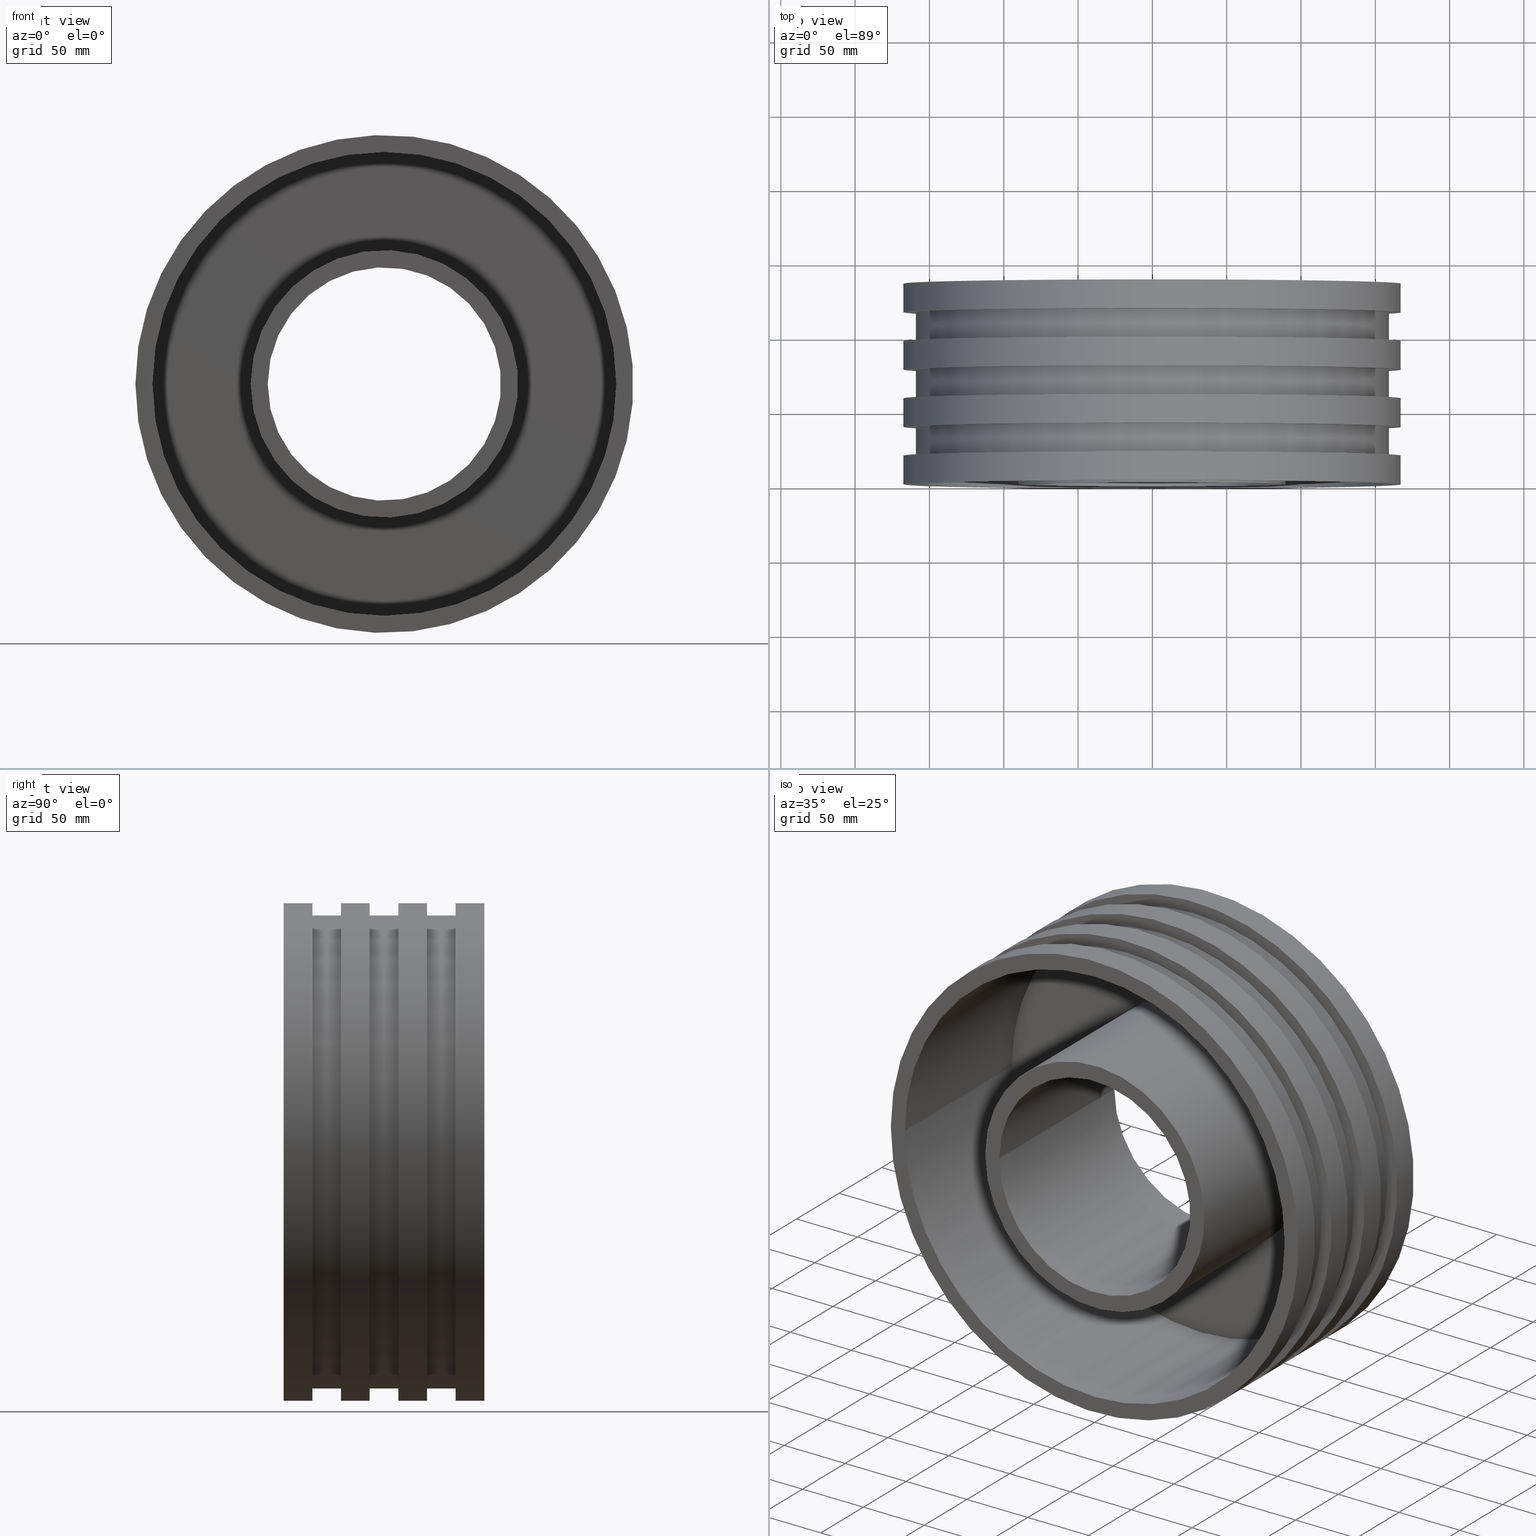
[diagram: canonical four-view strip — front | top / right | iso, engineering-drawing reading convention]
A machine part, canonical four-view strip (front | top / right | iso — engineering-drawing reading convention). The complete STEP part file that produces these views, byte-faithful:
ISO-10303-21;
HEADER;
/* Generated by software containing ST-Developer
 * from STEP Tools, Inc. (www.steptools.com) 
 */

FILE_DESCRIPTION(
/* description */ ('PLASSON MAN HOLE ADAPTOR 180'),
/* implementation_level */ '2;1');

FILE_NAME(
/* name */ 
'C:\\Dropbox\\KIMPROJECTS-Inventor\\99-16-3568-Processing\\ElectroFusi
on Fittings\\37020-477207\\37020180.ipt.stp',
/* time_stamp */ '2017-11-06T09:08:25+02:00',
/* author */ ('\X2\041A043804400438043B043B\X0\'),
/* organization */ (''),
/* preprocessor_version */ 'ST-DEVELOPER v15.6',
/* originating_system */ 'Autodesk Inventor 2015',
/* authorisation */ '');

FILE_SCHEMA (('AUTOMOTIVE_DESIGN { 1 0 10303 214 3 1 1 }'));
ENDSEC;

DATA;
#10=MECHANICAL_DESIGN_GEOMETRIC_PRESENTATION_REPRESENTATION('',(#13),#423);
#11=SHAPE_REPRESENTATION_RELATIONSHIP('SRR','None',#432,#12);
#12=ADVANCED_BREP_SHAPE_REPRESENTATION($,(#14),#422);
#13=STYLED_ITEM('',(#441),#14);
#14=MANIFOLD_SOLID_BREP('Solid1',#235);
#15=CYLINDRICAL_SURFACE('',#240,90.);
#16=CYLINDRICAL_SURFACE('',#244,156.);
#17=CYLINDRICAL_SURFACE('',#248,167.5);
#18=CYLINDRICAL_SURFACE('',#252,159.125);
#19=CYLINDRICAL_SURFACE('',#256,167.5);
#20=CYLINDRICAL_SURFACE('',#260,159.125);
#21=CYLINDRICAL_SURFACE('',#264,167.5);
#22=CYLINDRICAL_SURFACE('',#268,159.125);
#23=CYLINDRICAL_SURFACE('',#272,167.5);
#24=CYLINDRICAL_SURFACE('',#276,78.5);
#25=FACE_BOUND('',#66,.T.);
#26=FACE_BOUND('',#68,.T.);
#27=FACE_BOUND('',#70,.T.);
#28=FACE_BOUND('',#72,.T.);
#29=FACE_BOUND('',#74,.T.);
#30=FACE_BOUND('',#76,.T.);
#31=FACE_BOUND('',#78,.T.);
#32=FACE_BOUND('',#80,.T.);
#33=FACE_BOUND('',#82,.T.);
#34=FACE_BOUND('',#84,.T.);
#35=FACE_BOUND('',#86,.T.);
#36=FACE_BOUND('',#88,.T.);
#37=FACE_BOUND('',#90,.T.);
#38=FACE_BOUND('',#92,.T.);
#39=FACE_BOUND('',#94,.T.);
#40=FACE_BOUND('',#96,.T.);
#41=FACE_BOUND('',#98,.T.);
#42=FACE_BOUND('',#100,.T.);
#43=FACE_BOUND('',#102,.T.);
#44=FACE_BOUND('',#104,.T.);
#45=FACE_OUTER_BOUND('',#65,.T.);
#46=FACE_OUTER_BOUND('',#67,.T.);
#47=FACE_OUTER_BOUND('',#69,.T.);
#48=FACE_OUTER_BOUND('',#71,.T.);
#49=FACE_OUTER_BOUND('',#73,.T.);
#50=FACE_OUTER_BOUND('',#75,.T.);
#51=FACE_OUTER_BOUND('',#77,.T.);
#52=FACE_OUTER_BOUND('',#79,.T.);
#53=FACE_OUTER_BOUND('',#81,.T.);
#54=FACE_OUTER_BOUND('',#83,.T.);
#55=FACE_OUTER_BOUND('',#85,.T.);
#56=FACE_OUTER_BOUND('',#87,.T.);
#57=FACE_OUTER_BOUND('',#89,.T.);
#58=FACE_OUTER_BOUND('',#91,.T.);
#59=FACE_OUTER_BOUND('',#93,.T.);
#60=FACE_OUTER_BOUND('',#95,.T.);
#61=FACE_OUTER_BOUND('',#97,.T.);
#62=FACE_OUTER_BOUND('',#99,.T.);
#63=FACE_OUTER_BOUND('',#101,.T.);
#64=FACE_OUTER_BOUND('',#103,.T.);
#65=EDGE_LOOP('',(#165));
#66=EDGE_LOOP('',(#166));
#67=EDGE_LOOP('',(#167));
#68=EDGE_LOOP('',(#168));
#69=EDGE_LOOP('',(#169));
#70=EDGE_LOOP('',(#170));
#71=EDGE_LOOP('',(#171));
#72=EDGE_LOOP('',(#172));
#73=EDGE_LOOP('',(#173));
#74=EDGE_LOOP('',(#174));
#75=EDGE_LOOP('',(#175));
#76=EDGE_LOOP('',(#176));
#77=EDGE_LOOP('',(#177));
#78=EDGE_LOOP('',(#178));
#79=EDGE_LOOP('',(#179));
#80=EDGE_LOOP('',(#180));
#81=EDGE_LOOP('',(#181));
#82=EDGE_LOOP('',(#182));
#83=EDGE_LOOP('',(#183));
#84=EDGE_LOOP('',(#184));
#85=EDGE_LOOP('',(#185));
#86=EDGE_LOOP('',(#186));
#87=EDGE_LOOP('',(#187));
#88=EDGE_LOOP('',(#188));
#89=EDGE_LOOP('',(#189));
#90=EDGE_LOOP('',(#190));
#91=EDGE_LOOP('',(#191));
#92=EDGE_LOOP('',(#192));
#93=EDGE_LOOP('',(#193));
#94=EDGE_LOOP('',(#194));
#95=EDGE_LOOP('',(#195));
#96=EDGE_LOOP('',(#196));
#97=EDGE_LOOP('',(#197));
#98=EDGE_LOOP('',(#198));
#99=EDGE_LOOP('',(#199));
#100=EDGE_LOOP('',(#200));
#101=EDGE_LOOP('',(#201));
#102=EDGE_LOOP('',(#202));
#103=EDGE_LOOP('',(#203));
#104=EDGE_LOOP('',(#204));
#105=CIRCLE('',#238,90.);
#106=CIRCLE('',#239,78.5);
#107=CIRCLE('',#241,90.);
#108=CIRCLE('',#243,156.);
#109=CIRCLE('',#245,156.);
#110=CIRCLE('',#247,167.5);
#111=CIRCLE('',#249,167.5);
#112=CIRCLE('',#251,159.125);
#113=CIRCLE('',#253,159.125);
#114=CIRCLE('',#255,167.5);
#115=CIRCLE('',#257,167.5);
#116=CIRCLE('',#259,159.125);
#117=CIRCLE('',#261,159.125);
#118=CIRCLE('',#263,167.5);
#119=CIRCLE('',#265,167.5);
#120=CIRCLE('',#267,159.125);
#121=CIRCLE('',#269,159.125);
#122=CIRCLE('',#271,167.5);
#123=CIRCLE('',#273,167.5);
#124=CIRCLE('',#275,78.5);
#125=VERTEX_POINT('',#361);
#126=VERTEX_POINT('',#363);
#127=VERTEX_POINT('',#366);
#128=VERTEX_POINT('',#369);
#129=VERTEX_POINT('',#372);
#130=VERTEX_POINT('',#375);
#131=VERTEX_POINT('',#378);
#132=VERTEX_POINT('',#381);
#133=VERTEX_POINT('',#384);
#134=VERTEX_POINT('',#387);
#135=VERTEX_POINT('',#390);
#136=VERTEX_POINT('',#393);
#137=VERTEX_POINT('',#396);
#138=VERTEX_POINT('',#399);
#139=VERTEX_POINT('',#402);
#140=VERTEX_POINT('',#405);
#141=VERTEX_POINT('',#408);
#142=VERTEX_POINT('',#411);
#143=VERTEX_POINT('',#414);
#144=VERTEX_POINT('',#417);
#145=EDGE_CURVE('',#125,#125,#105,.T.);
#146=EDGE_CURVE('',#126,#126,#106,.T.);
#147=EDGE_CURVE('',#127,#127,#107,.T.);
#148=EDGE_CURVE('',#128,#128,#108,.T.);
#149=EDGE_CURVE('',#129,#129,#109,.T.);
#150=EDGE_CURVE('',#130,#130,#110,.T.);
#151=EDGE_CURVE('',#131,#131,#111,.T.);
#152=EDGE_CURVE('',#132,#132,#112,.T.);
#153=EDGE_CURVE('',#133,#133,#113,.T.);
#154=EDGE_CURVE('',#134,#134,#114,.T.);
#155=EDGE_CURVE('',#135,#135,#115,.T.);
#156=EDGE_CURVE('',#136,#136,#116,.T.);
#157=EDGE_CURVE('',#137,#137,#117,.T.);
#158=EDGE_CURVE('',#138,#138,#118,.T.);
#159=EDGE_CURVE('',#139,#139,#119,.T.);
#160=EDGE_CURVE('',#140,#140,#120,.T.);
#161=EDGE_CURVE('',#141,#141,#121,.T.);
#162=EDGE_CURVE('',#142,#142,#122,.T.);
#163=EDGE_CURVE('',#143,#143,#123,.T.);
#164=EDGE_CURVE('',#144,#144,#124,.T.);
#165=ORIENTED_EDGE('',*,*,#145,.F.);
#166=ORIENTED_EDGE('',*,*,#146,.T.);
#167=ORIENTED_EDGE('',*,*,#145,.T.);
#168=ORIENTED_EDGE('',*,*,#147,.F.);
#169=ORIENTED_EDGE('',*,*,#148,.F.);
#170=ORIENTED_EDGE('',*,*,#147,.T.);
#171=ORIENTED_EDGE('',*,*,#148,.T.);
#172=ORIENTED_EDGE('',*,*,#149,.F.);
#173=ORIENTED_EDGE('',*,*,#150,.F.);
#174=ORIENTED_EDGE('',*,*,#149,.T.);
#175=ORIENTED_EDGE('',*,*,#150,.T.);
#176=ORIENTED_EDGE('',*,*,#151,.F.);
#177=ORIENTED_EDGE('',*,*,#151,.T.);
#178=ORIENTED_EDGE('',*,*,#152,.F.);
#179=ORIENTED_EDGE('',*,*,#152,.T.);
#180=ORIENTED_EDGE('',*,*,#153,.F.);
#181=ORIENTED_EDGE('',*,*,#154,.F.);
#182=ORIENTED_EDGE('',*,*,#153,.T.);
#183=ORIENTED_EDGE('',*,*,#154,.T.);
#184=ORIENTED_EDGE('',*,*,#155,.F.);
#185=ORIENTED_EDGE('',*,*,#155,.T.);
#186=ORIENTED_EDGE('',*,*,#156,.F.);
#187=ORIENTED_EDGE('',*,*,#156,.T.);
#188=ORIENTED_EDGE('',*,*,#157,.F.);
#189=ORIENTED_EDGE('',*,*,#158,.F.);
#190=ORIENTED_EDGE('',*,*,#157,.T.);
#191=ORIENTED_EDGE('',*,*,#158,.T.);
#192=ORIENTED_EDGE('',*,*,#159,.F.);
#193=ORIENTED_EDGE('',*,*,#159,.T.);
#194=ORIENTED_EDGE('',*,*,#160,.F.);
#195=ORIENTED_EDGE('',*,*,#160,.T.);
#196=ORIENTED_EDGE('',*,*,#161,.F.);
#197=ORIENTED_EDGE('',*,*,#162,.F.);
#198=ORIENTED_EDGE('',*,*,#161,.T.);
#199=ORIENTED_EDGE('',*,*,#162,.T.);
#200=ORIENTED_EDGE('',*,*,#163,.F.);
#201=ORIENTED_EDGE('',*,*,#163,.T.);
#202=ORIENTED_EDGE('',*,*,#164,.F.);
#203=ORIENTED_EDGE('',*,*,#164,.T.);
#204=ORIENTED_EDGE('',*,*,#146,.F.);
#205=PLANE('',#237);
#206=PLANE('',#242);
#207=PLANE('',#246);
#208=PLANE('',#250);
#209=PLANE('',#254);
#210=PLANE('',#258);
#211=PLANE('',#262);
#212=PLANE('',#266);
#213=PLANE('',#270);
#214=PLANE('',#274);
#215=ADVANCED_FACE('',(#45,#25),#205,.T.);
#216=ADVANCED_FACE('',(#46,#26),#15,.T.);
#217=ADVANCED_FACE('',(#47,#27),#206,.T.);
#218=ADVANCED_FACE('',(#48,#28),#16,.F.);
#219=ADVANCED_FACE('',(#49,#29),#207,.T.);
#220=ADVANCED_FACE('',(#50,#30),#17,.T.);
#221=ADVANCED_FACE('',(#51,#31),#208,.T.);
#222=ADVANCED_FACE('',(#52,#32),#18,.T.);
#223=ADVANCED_FACE('',(#53,#33),#209,.T.);
#224=ADVANCED_FACE('',(#54,#34),#19,.T.);
#225=ADVANCED_FACE('',(#55,#35),#210,.T.);
#226=ADVANCED_FACE('',(#56,#36),#20,.T.);
#227=ADVANCED_FACE('',(#57,#37),#211,.T.);
#228=ADVANCED_FACE('',(#58,#38),#21,.T.);
#229=ADVANCED_FACE('',(#59,#39),#212,.T.);
#230=ADVANCED_FACE('',(#60,#40),#22,.T.);
#231=ADVANCED_FACE('',(#61,#41),#213,.T.);
#232=ADVANCED_FACE('',(#62,#42),#23,.T.);
#233=ADVANCED_FACE('',(#63,#43),#214,.T.);
#234=ADVANCED_FACE('',(#64,#44),#24,.F.);
#235=CLOSED_SHELL('',(#215,#216,#217,#218,#219,#220,#221,#222,#223,#224,
#225,#226,#227,#228,#229,#230,#231,#232,#233,#234));
#236=AXIS2_PLACEMENT_3D('placement',#359,#277,#278);
#237=AXIS2_PLACEMENT_3D('',#360,#279,#280);
#238=AXIS2_PLACEMENT_3D('',#362,#281,#282);
#239=AXIS2_PLACEMENT_3D('',#364,#283,#284);
#240=AXIS2_PLACEMENT_3D('',#365,#285,#286);
#241=AXIS2_PLACEMENT_3D('',#367,#287,#288);
#242=AXIS2_PLACEMENT_3D('',#368,#289,#290);
#243=AXIS2_PLACEMENT_3D('',#370,#291,#292);
#244=AXIS2_PLACEMENT_3D('',#371,#293,#294);
#245=AXIS2_PLACEMENT_3D('',#373,#295,#296);
#246=AXIS2_PLACEMENT_3D('',#374,#297,#298);
#247=AXIS2_PLACEMENT_3D('',#376,#299,#300);
#248=AXIS2_PLACEMENT_3D('',#377,#301,#302);
#249=AXIS2_PLACEMENT_3D('',#379,#303,#304);
#250=AXIS2_PLACEMENT_3D('',#380,#305,#306);
#251=AXIS2_PLACEMENT_3D('',#382,#307,#308);
#252=AXIS2_PLACEMENT_3D('',#383,#309,#310);
#253=AXIS2_PLACEMENT_3D('',#385,#311,#312);
#254=AXIS2_PLACEMENT_3D('',#386,#313,#314);
#255=AXIS2_PLACEMENT_3D('',#388,#315,#316);
#256=AXIS2_PLACEMENT_3D('',#389,#317,#318);
#257=AXIS2_PLACEMENT_3D('',#391,#319,#320);
#258=AXIS2_PLACEMENT_3D('',#392,#321,#322);
#259=AXIS2_PLACEMENT_3D('',#394,#323,#324);
#260=AXIS2_PLACEMENT_3D('',#395,#325,#326);
#261=AXIS2_PLACEMENT_3D('',#397,#327,#328);
#262=AXIS2_PLACEMENT_3D('',#398,#329,#330);
#263=AXIS2_PLACEMENT_3D('',#400,#331,#332);
#264=AXIS2_PLACEMENT_3D('',#401,#333,#334);
#265=AXIS2_PLACEMENT_3D('',#403,#335,#336);
#266=AXIS2_PLACEMENT_3D('',#404,#337,#338);
#267=AXIS2_PLACEMENT_3D('',#406,#339,#340);
#268=AXIS2_PLACEMENT_3D('',#407,#341,#342);
#269=AXIS2_PLACEMENT_3D('',#409,#343,#344);
#270=AXIS2_PLACEMENT_3D('',#410,#345,#346);
#271=AXIS2_PLACEMENT_3D('',#412,#347,#348);
#272=AXIS2_PLACEMENT_3D('',#413,#349,#350);
#273=AXIS2_PLACEMENT_3D('',#415,#351,#352);
#274=AXIS2_PLACEMENT_3D('',#416,#353,#354);
#275=AXIS2_PLACEMENT_3D('',#418,#355,#356);
#276=AXIS2_PLACEMENT_3D('',#419,#357,#358);
#277=DIRECTION('axis',(0.,0.,1.));
#278=DIRECTION('refdir',(1.,0.,0.));
#279=DIRECTION('center_axis',(0.,-1.,0.));
#280=DIRECTION('ref_axis',(0.,0.,-1.));
#281=DIRECTION('center_axis',(0.,1.,0.));
#282=DIRECTION('ref_axis',(1.,0.,0.));
#283=DIRECTION('center_axis',(0.,1.,0.));
#284=DIRECTION('ref_axis',(1.,0.,0.));
#285=DIRECTION('center_axis',(0.,1.,0.));
#286=DIRECTION('ref_axis',(-1.,0.,0.));
#287=DIRECTION('center_axis',(0.,1.,0.));
#288=DIRECTION('ref_axis',(1.,0.,0.));
#289=DIRECTION('center_axis',(0.,-1.,0.));
#290=DIRECTION('ref_axis',(0.,0.,-1.));
#291=DIRECTION('center_axis',(0.,1.,0.));
#292=DIRECTION('ref_axis',(1.,0.,0.));
#293=DIRECTION('center_axis',(0.,1.,0.));
#294=DIRECTION('ref_axis',(-1.,0.,0.));
#295=DIRECTION('center_axis',(0.,1.,0.));
#296=DIRECTION('ref_axis',(1.,0.,0.));
#297=DIRECTION('center_axis',(0.,-1.,0.));
#298=DIRECTION('ref_axis',(0.,0.,-1.));
#299=DIRECTION('center_axis',(0.,1.,0.));
#300=DIRECTION('ref_axis',(1.,0.,0.));
#301=DIRECTION('center_axis',(0.,1.,0.));
#302=DIRECTION('ref_axis',(-1.,0.,0.));
#303=DIRECTION('center_axis',(0.,1.,0.));
#304=DIRECTION('ref_axis',(1.,0.,0.));
#305=DIRECTION('center_axis',(0.,1.,0.));
#306=DIRECTION('ref_axis',(0.,0.,1.));
#307=DIRECTION('center_axis',(0.,1.,0.));
#308=DIRECTION('ref_axis',(1.,0.,0.));
#309=DIRECTION('center_axis',(0.,1.,0.));
#310=DIRECTION('ref_axis',(-1.,0.,0.));
#311=DIRECTION('center_axis',(0.,1.,0.));
#312=DIRECTION('ref_axis',(1.,0.,0.));
#313=DIRECTION('center_axis',(0.,-1.,0.));
#314=DIRECTION('ref_axis',(0.,0.,-1.));
#315=DIRECTION('center_axis',(0.,1.,0.));
#316=DIRECTION('ref_axis',(1.,0.,0.));
#317=DIRECTION('center_axis',(0.,1.,0.));
#318=DIRECTION('ref_axis',(-1.,0.,0.));
#319=DIRECTION('center_axis',(0.,1.,0.));
#320=DIRECTION('ref_axis',(1.,0.,0.));
#321=DIRECTION('center_axis',(0.,1.,0.));
#322=DIRECTION('ref_axis',(0.,0.,1.));
#323=DIRECTION('center_axis',(0.,1.,0.));
#324=DIRECTION('ref_axis',(1.,0.,0.));
#325=DIRECTION('center_axis',(0.,1.,0.));
#326=DIRECTION('ref_axis',(-1.,0.,0.));
#327=DIRECTION('center_axis',(0.,1.,0.));
#328=DIRECTION('ref_axis',(1.,0.,0.));
#329=DIRECTION('center_axis',(0.,-1.,0.));
#330=DIRECTION('ref_axis',(0.,0.,-1.));
#331=DIRECTION('center_axis',(0.,1.,0.));
#332=DIRECTION('ref_axis',(1.,0.,0.));
#333=DIRECTION('center_axis',(0.,1.,0.));
#334=DIRECTION('ref_axis',(-1.,0.,0.));
#335=DIRECTION('center_axis',(0.,1.,0.));
#336=DIRECTION('ref_axis',(1.,0.,0.));
#337=DIRECTION('center_axis',(0.,1.,0.));
#338=DIRECTION('ref_axis',(0.,0.,1.));
#339=DIRECTION('center_axis',(0.,1.,0.));
#340=DIRECTION('ref_axis',(1.,0.,0.));
#341=DIRECTION('center_axis',(0.,1.,0.));
#342=DIRECTION('ref_axis',(-1.,0.,0.));
#343=DIRECTION('center_axis',(0.,1.,0.));
#344=DIRECTION('ref_axis',(1.,0.,0.));
#345=DIRECTION('center_axis',(0.,-1.,0.));
#346=DIRECTION('ref_axis',(0.,0.,-1.));
#347=DIRECTION('center_axis',(0.,1.,0.));
#348=DIRECTION('ref_axis',(1.,0.,0.));
#349=DIRECTION('center_axis',(0.,1.,0.));
#350=DIRECTION('ref_axis',(-1.,0.,0.));
#351=DIRECTION('center_axis',(0.,1.,0.));
#352=DIRECTION('ref_axis',(1.,0.,0.));
#353=DIRECTION('center_axis',(0.,1.,0.));
#354=DIRECTION('ref_axis',(0.,0.,1.));
#355=DIRECTION('center_axis',(0.,1.,0.));
#356=DIRECTION('ref_axis',(1.,0.,0.));
#357=DIRECTION('center_axis',(0.,1.,0.));
#358=DIRECTION('ref_axis',(-1.,0.,0.));
#359=CARTESIAN_POINT('',(0.,0.,0.));
#360=CARTESIAN_POINT('Origin',(-90.,0.,0.));
#361=CARTESIAN_POINT('',(-90.,0.,0.));
#362=CARTESIAN_POINT('Origin',(0.,0.,0.));
#363=CARTESIAN_POINT('',(-78.5,0.,0.));
#364=CARTESIAN_POINT('Origin',(0.,0.,0.));
#365=CARTESIAN_POINT('Origin',(0.,62.6785714285714,0.));
#366=CARTESIAN_POINT('',(-90.,125.357142857143,0.));
#367=CARTESIAN_POINT('Origin',(0.,125.357142857143,0.));
#368=CARTESIAN_POINT('Origin',(-156.,125.357142857143,0.));
#369=CARTESIAN_POINT('',(-156.,125.357142857143,0.));
#370=CARTESIAN_POINT('Origin',(0.,125.357142857143,0.));
#371=CARTESIAN_POINT('Origin',(0.,62.6785714285714,0.));
#372=CARTESIAN_POINT('',(-156.,-5.91645678915755E-31,0.));
#373=CARTESIAN_POINT('Origin',(0.,0.,0.));
#374=CARTESIAN_POINT('Origin',(-167.5,0.,0.));
#375=CARTESIAN_POINT('',(-167.5,0.,0.));
#376=CARTESIAN_POINT('Origin',(0.,0.,0.));
#377=CARTESIAN_POINT('Origin',(0.,9.64285714285714,0.));
#378=CARTESIAN_POINT('',(-167.5,19.2857142857143,0.));
#379=CARTESIAN_POINT('Origin',(0.,19.2857142857143,0.));
#380=CARTESIAN_POINT('Origin',(-159.125,19.2857142857143,0.));
#381=CARTESIAN_POINT('',(-159.125,19.2857142857143,0.));
#382=CARTESIAN_POINT('Origin',(0.,19.2857142857143,0.));
#383=CARTESIAN_POINT('Origin',(0.,28.9285714285714,0.));
#384=CARTESIAN_POINT('',(-159.125,38.5714285714286,0.));
#385=CARTESIAN_POINT('Origin',(0.,38.5714285714286,0.));
#386=CARTESIAN_POINT('Origin',(-167.5,38.5714285714286,0.));
#387=CARTESIAN_POINT('',(-167.5,38.5714285714286,0.));
#388=CARTESIAN_POINT('Origin',(0.,38.5714285714286,0.));
#389=CARTESIAN_POINT('Origin',(0.,48.2142857142857,0.));
#390=CARTESIAN_POINT('',(-167.5,57.8571428571429,0.));
#391=CARTESIAN_POINT('Origin',(0.,57.8571428571429,0.));
#392=CARTESIAN_POINT('Origin',(-159.125,57.8571428571429,0.));
#393=CARTESIAN_POINT('',(-159.125,57.8571428571429,0.));
#394=CARTESIAN_POINT('Origin',(0.,57.8571428571429,0.));
#395=CARTESIAN_POINT('Origin',(0.,67.5,0.));
#396=CARTESIAN_POINT('',(-159.125,77.1428571428572,0.));
#397=CARTESIAN_POINT('Origin',(0.,77.1428571428572,0.));
#398=CARTESIAN_POINT('Origin',(-167.5,77.1428571428572,0.));
#399=CARTESIAN_POINT('',(-167.5,77.1428571428572,0.));
#400=CARTESIAN_POINT('Origin',(0.,77.1428571428572,0.));
#401=CARTESIAN_POINT('Origin',(0.,86.7857142857143,0.));
#402=CARTESIAN_POINT('',(-167.5,96.4285714285714,0.));
#403=CARTESIAN_POINT('Origin',(0.,96.4285714285714,0.));
#404=CARTESIAN_POINT('Origin',(-159.125,96.4285714285714,0.));
#405=CARTESIAN_POINT('',(-159.125,96.4285714285714,0.));
#406=CARTESIAN_POINT('Origin',(0.,96.4285714285714,0.));
#407=CARTESIAN_POINT('Origin',(0.,106.071428571429,0.));
#408=CARTESIAN_POINT('',(-159.125,115.714285714286,0.));
#409=CARTESIAN_POINT('Origin',(0.,115.714285714286,0.));
#410=CARTESIAN_POINT('Origin',(-167.5,115.714285714286,0.));
#411=CARTESIAN_POINT('',(-167.5,115.714285714286,0.));
#412=CARTESIAN_POINT('Origin',(0.,115.714285714286,0.));
#413=CARTESIAN_POINT('Origin',(0.,125.357142857143,0.));
#414=CARTESIAN_POINT('',(-167.5,135.,0.));
#415=CARTESIAN_POINT('Origin',(0.,135.,0.));
#416=CARTESIAN_POINT('Origin',(-78.5,135.,0.));
#417=CARTESIAN_POINT('',(-78.5,135.,0.));
#418=CARTESIAN_POINT('Origin',(0.,135.,0.));
#419=CARTESIAN_POINT('Origin',(0.,67.5,0.));
#420=UNCERTAINTY_MEASURE_WITH_UNIT(LENGTH_MEASURE(0.01),#424,
'DISTANCE_ACCURACY_VALUE',
'Maximum model space distance between geometric entities at asserted c
onnectivities');
#421=UNCERTAINTY_MEASURE_WITH_UNIT(LENGTH_MEASURE(1.E-6),#424,
'DISTANCE_ACCURACY_VALUE',
'Maximum model space distance between geometric entities at asserted c
onnectivities');
#422=(
GEOMETRIC_REPRESENTATION_CONTEXT(3)
GLOBAL_UNCERTAINTY_ASSIGNED_CONTEXT((#420))
GLOBAL_UNIT_ASSIGNED_CONTEXT((#424,#427,#425))
REPRESENTATION_CONTEXT('','3D')
);
#423=(
GEOMETRIC_REPRESENTATION_CONTEXT(3)
GLOBAL_UNCERTAINTY_ASSIGNED_CONTEXT((#421))
GLOBAL_UNIT_ASSIGNED_CONTEXT((#424,#427,#425))
REPRESENTATION_CONTEXT('','3D')
);
#424=(
LENGTH_UNIT()
NAMED_UNIT(*)
SI_UNIT(.MILLI.,.METRE.)
);
#425=(
NAMED_UNIT(*)
SI_UNIT($,.STERADIAN.)
SOLID_ANGLE_UNIT()
);
#426=DIMENSIONAL_EXPONENTS(0.,0.,0.,0.,0.,0.,0.);
#427=(
CONVERSION_BASED_UNIT('degree',#429)
NAMED_UNIT(#426)
PLANE_ANGLE_UNIT()
);
#428=(
NAMED_UNIT(*)
PLANE_ANGLE_UNIT()
SI_UNIT($,.RADIAN.)
);
#429=PLANE_ANGLE_MEASURE_WITH_UNIT(PLANE_ANGLE_MEASURE(0.01745329252),#428);
#430=SHAPE_DEFINITION_REPRESENTATION(#431,#432);
#431=PRODUCT_DEFINITION_SHAPE('',$,#434);
#432=SHAPE_REPRESENTATION('',(#236),#422);
#433=PRODUCT_DEFINITION_CONTEXT('part definition',#438,'design');
#434=PRODUCT_DEFINITION('37020180','37020180',#435,#433);
#435=PRODUCT_DEFINITION_FORMATION('',$,#440);
#436=PRODUCT_RELATED_PRODUCT_CATEGORY('37020180','37020180',(#440));
#437=APPLICATION_PROTOCOL_DEFINITION('international standard',
'automotive_design',2009,#438);
#438=APPLICATION_CONTEXT(
'Core Data for Automotive Mechanical Design Process');
#439=PRODUCT_CONTEXT('part definition',#438,'mechanical');
#440=PRODUCT('37020180','37020180',$,(#439));
#441=PRESENTATION_STYLE_ASSIGNMENT((#442));
#442=SURFACE_STYLE_USAGE(.BOTH.,#443);
#443=SURFACE_SIDE_STYLE($,(#444));
#444=SURFACE_STYLE_FILL_AREA(#445);
#445=FILL_AREA_STYLE($,(#446));
#446=FILL_AREA_STYLE_COLOUR($,#447);
#447=COLOUR_RGB('',0.749019607843137,0.749019607843137,0.749019607843137);
ENDSEC;
END-ISO-10303-21;
